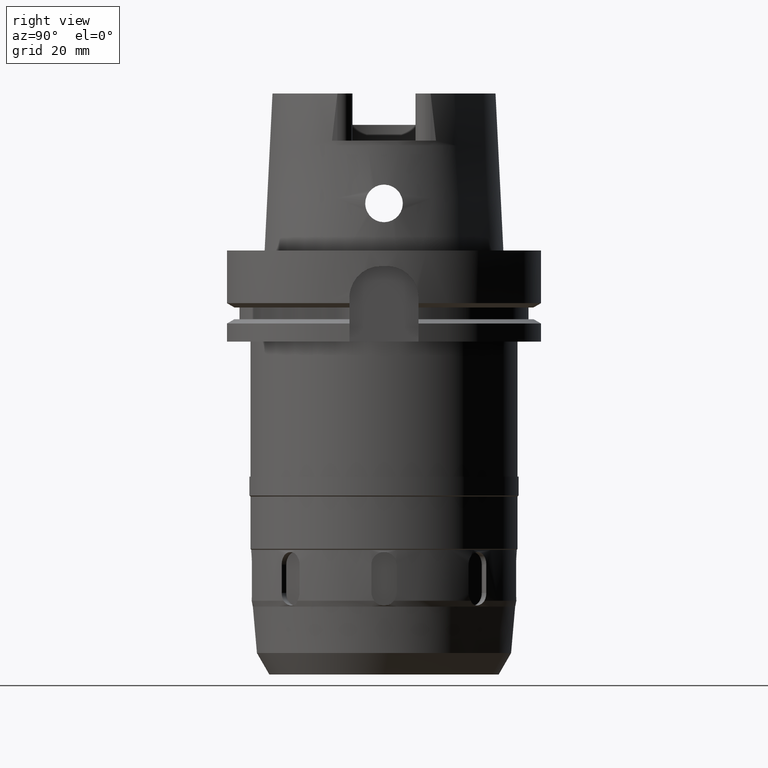
[diagram: clean part render]
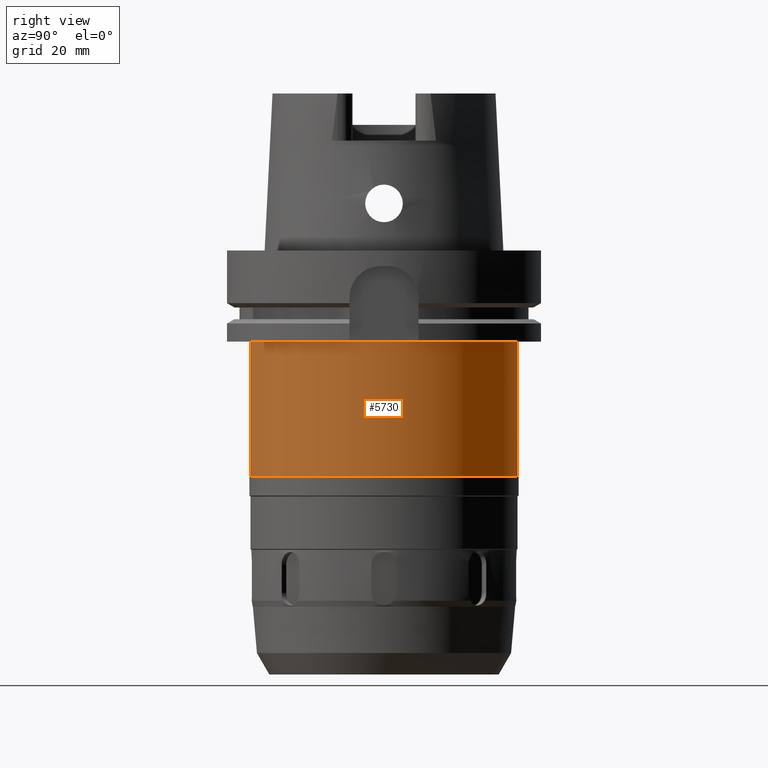
[diagram: same view with one face highlighted and labeled with its STEP entity id]
A machine part, right view. The second image highlights one B-rep face of the part: STEP entity #5730.
In plain terms, the highlighted cylindrical surface (partial cylindrical patch) has radius 42.5 mm, axis along (0, 0, 1).
Its self-contained STEP definition (entity closure, byte-faithful):
#2511=CARTESIAN_POINT('',(0.E0,0.E0,-7.2E1));
#2512=DIRECTION('',(0.E0,0.E0,1.E0));
#2513=DIRECTION('',(0.E0,-1.E0,0.E0));
#2514=AXIS2_PLACEMENT_3D('',#2511,#2512,#2513);
#2527=DIRECTION('',(0.E0,0.E0,-1.E0));
#2528=VECTOR('',#2527,4.3E1);
#2529=CARTESIAN_POINT('',(0.E0,4.25E1,-2.9E1));
#2530=LINE('',#2529,#2528);
#2534=DIRECTION('',(0.E0,0.E0,-1.E0));
#2535=VECTOR('',#2534,4.3E1);
#2536=CARTESIAN_POINT('',(0.E0,-4.25E1,-2.9E1));
#2537=LINE('',#2536,#2535);
#2610=CARTESIAN_POINT('',(0.E0,0.E0,-2.9E1));
#2611=DIRECTION('',(0.E0,0.E0,-1.E0));
#2612=DIRECTION('',(0.E0,1.E0,0.E0));
#2613=AXIS2_PLACEMENT_3D('',#2610,#2611,#2612);
#3859=CARTESIAN_POINT('',(0.E0,-4.25E1,-7.2E1));
#3860=CARTESIAN_POINT('',(0.E0,4.25E1,-7.2E1));
#3861=VERTEX_POINT('',#3859);
#3862=VERTEX_POINT('',#3860);
#3863=CARTESIAN_POINT('',(0.E0,4.25E1,-2.9E1));
#3864=VERTEX_POINT('',#3863);
#3865=CARTESIAN_POINT('',(0.E0,-4.25E1,-2.9E1));
#3866=VERTEX_POINT('',#3865);
#5716=CARTESIAN_POINT('',(0.E0,0.E0,-1.4425E2));
#5717=DIRECTION('',(0.E0,0.E0,1.E0));
#5718=DIRECTION('',(0.E0,1.E0,0.E0));
#5719=AXIS2_PLACEMENT_3D('',#5716,#5717,#5718);
#5720=CYLINDRICAL_SURFACE('',#5719,4.25E1);
#5722=ORIENTED_EDGE('',*,*,#5721,.T.);
#5723=ORIENTED_EDGE('',*,*,#5709,.F.);
#5725=ORIENTED_EDGE('',*,*,#5724,.F.);
#5727=ORIENTED_EDGE('',*,*,#5726,.F.);
#5728=EDGE_LOOP('',(#5722,#5723,#5725,#5727));
#5729=FACE_OUTER_BOUND('',#5728,.F.);
#2515=CIRCLE('',#2514,4.25E1);
#2614=CIRCLE('',#2613,4.25E1);
#5709=EDGE_CURVE('',#3861,#3862,#2515,.T.);
#5721=EDGE_CURVE('',#3864,#3862,#2530,.T.);
#5724=EDGE_CURVE('',#3866,#3861,#2537,.T.);
#5726=EDGE_CURVE('',#3864,#3866,#2614,.T.);
#5730=ADVANCED_FACE('',(#5729),#5720,.T.);